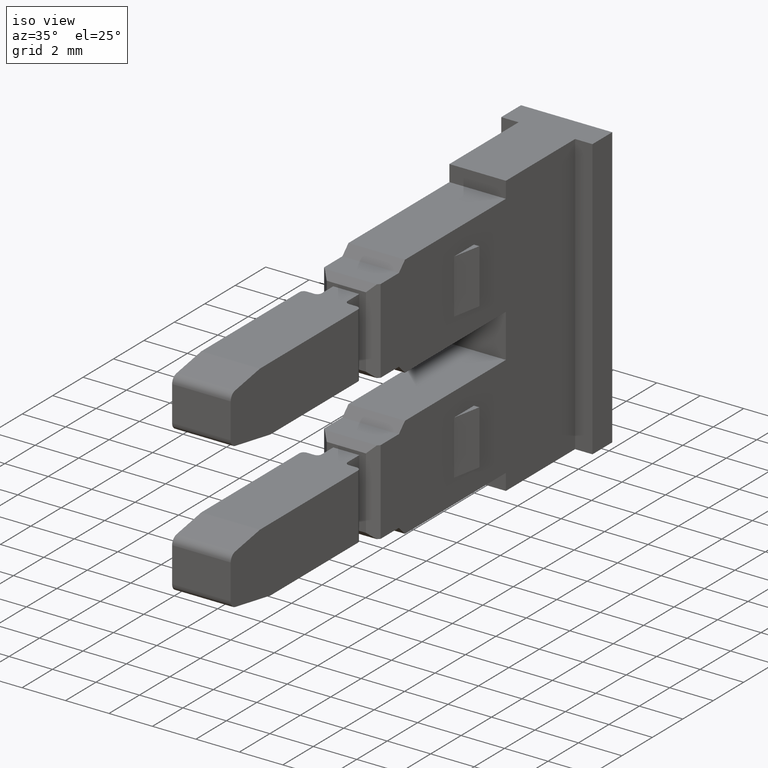
[diagram: clean part render]
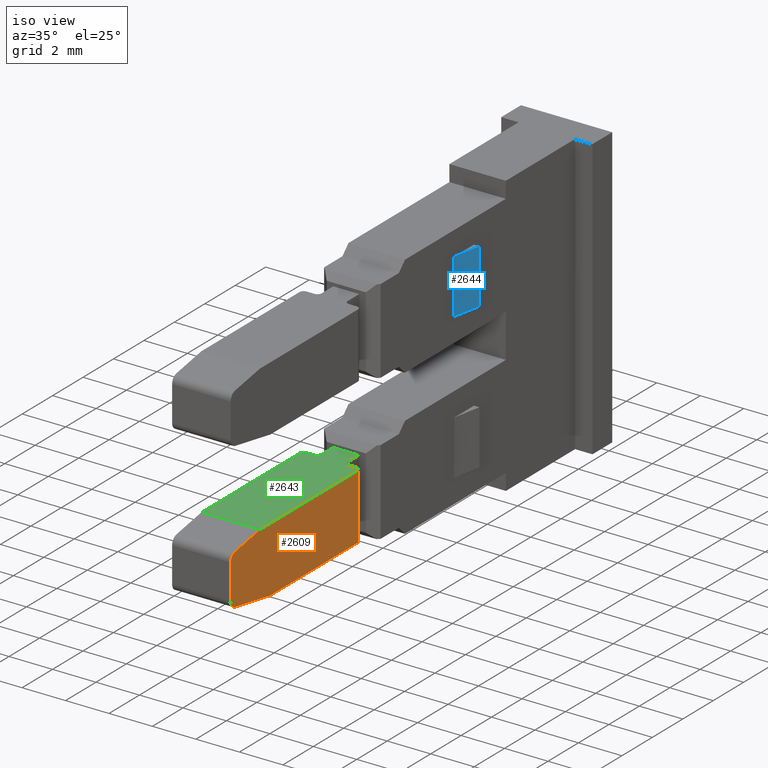
[diagram: same view with three faces highlighted in distinct colors, each labeled with its STEP entity id]
A machine part, iso view with three faces highlighted in distinct colors.
Their STEP definitions:

[orange] entity #2609 — the highlighted planar face has unit normal (1, -0, 0).
#131 = EDGE_LOOP ( 'NONE', ( #866, #878, #843, #883, #888, #847, #882, #853 ) ) ;
#141 = CARTESIAN_POINT ( 'NONE',  ( 1393.430047710925700, 1053.955040641086000, -0.7471850652951396200 ) ) ;
#166 = CARTESIAN_POINT ( 'NONE',  ( 1393.430065924738100, 1055.875547311211200, 1.500000000137393900 ) ) ;
#192 = CARTESIAN_POINT ( 'NONE',  ( 1393.430127046554400, 1062.320373618778600, -1.499999999848094800 ) ) ;
#193 = CARTESIAN_POINT ( 'NONE',  ( 1393.430047710925200, 1053.955040641085800, 0.8676779866391469700 ) ) ;
#199 = CARTESIAN_POINT ( 'NONE',  ( 1393.430050453876400, 1054.244263778889500, -1.091867778849486800 ) ) ;
#207 = CARTESIAN_POINT ( 'NONE',  ( 1393.430050453876000, 1054.244263778889300, 1.212360700193435800 ) ) ;
#222 = CARTESIAN_POINT ( 'NONE',  ( 1393.430127046554400, 1062.320373618778600, 1.500000000140230700 ) ) ;
#239 = CARTESIAN_POINT ( 'NONE',  ( 1393.430072405503600, 1056.558894252765200, -1.499999999846775500 ) ) ;
#313 = LINE ( 'NONE', #314, #2366 ) ;
#314 = CARTESIAN_POINT ( 'NONE',  ( 1393.429974878271900, 1046.275396763449900, -1.499999999849504400 ) ) ;
#316 = DIRECTION ( 'NONE',  ( 9.483858160132053900E-006, 0.9999999999550282000, 0.0000000000000000000 ) ) ;
#420 = VERTEX_POINT ( 'NONE', #166 ) ;
#425 = VERTEX_POINT ( 'NONE', #141 ) ;
#443 = VERTEX_POINT ( 'NONE', #192 ) ;
#444 = VERTEX_POINT ( 'NONE', #193 ) ;
#447 = VERTEX_POINT ( 'NONE', #199 ) ;
#461 = VERTEX_POINT ( 'NONE', #222 ) ;
#463 = VERTEX_POINT ( 'NONE', #239 ) ;
#471 = VERTEX_POINT ( 'NONE', #207 ) ;
#843 = ORIENTED_EDGE ( 'NONE', *, *, #2679, .F. ) ;
#847 = ORIENTED_EDGE ( 'NONE', *, *, #2425, .T. ) ;
#853 = ORIENTED_EDGE ( 'NONE', *, *, #2711, .F. ) ;
#866 = ORIENTED_EDGE ( 'NONE', *, *, #2707, .T. ) ;
#878 = ORIENTED_EDGE ( 'NONE', *, *, #2664, .T. ) ;
#882 = ORIENTED_EDGE ( 'NONE', *, *, #2407, .T. ) ;
#883 = ORIENTED_EDGE ( 'NONE', *, *, #2709, .T. ) ;
#888 = ORIENTED_EDGE ( 'NONE', *, *, #2691, .F. ) ;
#970 = DIRECTION ( 'NONE',  ( -0.9999999999550283100, 9.483855583750710300E-006, -1.714874837315605300E-015 ) ) ;
#1001 = CARTESIAN_POINT ( 'NONE',  ( 1393.430051030274600, 1054.305040641070700, 0.8676779866391483000 ) ) ;
#1002 = DIRECTION ( 'NONE',  ( 9.483855605601561700E-006, 0.9999999999550282000, 1.065615849528465700E-013 ) ) ;
#1018 = DIRECTION ( 'NONE',  ( 9.483855605601561700E-006, 0.9999999999550282000, 1.288651725011167800E-013 ) ) ;
#1035 = CARTESIAN_POINT ( 'NONE',  ( 1393.430051030275300, 1054.305040641070700, -0.7471850652951399500 ) ) ;
#1049 = DIRECTION ( 'NONE',  ( -0.9999999999550283100, 9.483855583750710300E-006, -1.714874837315605300E-015 ) ) ;
#1054 = LINE ( 'NONE', #1085, #2279 ) ;
#1056 = DIRECTION ( 'NONE',  ( -9.483858160132053900E-006, -0.9999999999550282000, -0.0000000000000000000 ) ) ;
#1059 = CARTESIAN_POINT ( 'NONE',  ( 1393.430127046556700, 1062.320374567164400, -1.499999999846702600 ) ) ;
#1066 = CARTESIAN_POINT ( 'NONE',  ( 1393.430047710925200, 1053.955040641085800, -0.7471850652951577100 ) ) ;
#1074 = LINE ( 'NONE', #1059, #2281 ) ;
#1078 = LINE ( 'NONE', #1066, #2280 ) ;
#1079 = DIRECTION ( 'NONE',  ( -0.0000000000000000000, -0.0000000000000000000, -1.000000000000000000 ) ) ;
#1085 = CARTESIAN_POINT ( 'NONE',  ( 1393.429974878271900, 1046.275396763449900, 1.500000000140230700 ) ) ;
#1090 = DIRECTION ( 'NONE',  ( -0.0000000000000000000, -0.0000000000000000000, -1.000000000000000000 ) ) ;
#1162 = LINE ( 'NONE', #1179, #2384 ) ;
#1176 = DIRECTION ( 'NONE',  ( 9.339777050920863200E-006, 0.9848077529677348200, -0.1736481776679778000 ) ) ;
#1179 = CARTESIAN_POINT ( 'NONE',  ( 1393.430050453876400, 1054.244263778889500, -1.091867778849483500 ) ) ;
#1762 = FACE_OUTER_BOUND ( 'NONE', #131, .T. ) ;
#1773 = CARTESIAN_POINT ( 'NONE',  ( 1393.429974878271900, 1046.275396763449900, -3.306031936412574500 ) ) ;
#1782 = DIRECTION ( 'NONE',  ( 9.483858160132053900E-006, 0.9999999999550282000, 0.0000000000000000000 ) ) ;
#1792 = DIRECTION ( 'NONE',  ( 0.9999999999550282000, -9.483858160132053900E-006, 0.0000000000000000000 ) ) ;
#1802 = PLANE ( 'NONE',  #2237 ) ;
#1973 = DIRECTION ( 'NONE',  ( -9.339777484562960100E-006, -0.9848077529676954000, -0.1736481776682013400 ) ) ;
#1998 = LINE ( 'NONE', #2017, #2183 ) ;
#2017 = CARTESIAN_POINT ( 'NONE',  ( 1393.430065924738300, 1055.875547311204600, 1.500000000141142900 ) ) ;
#2183 = VECTOR ( 'NONE', #1973, 1000.000000000000100 ) ;
#2237 = AXIS2_PLACEMENT_3D ( 'NONE', #1773, #1792, #1782 ) ;
#2279 = VECTOR ( 'NONE', #1056, 1000.000000000000000 ) ;
#2280 = VECTOR ( 'NONE', #1090, 1000.000000000000000 ) ;
#2281 = VECTOR ( 'NONE', #1079, 1000.000000000000000 ) ;
#2289 = CIRCLE ( 'NONE', #2319, 0.3500000000000474400 ) ;
#2295 = AXIS2_PLACEMENT_3D ( 'NONE', #1035, #1049, #1018 ) ;
#2309 = CIRCLE ( 'NONE', #2295, 0.3500000000000474400 ) ;
#2319 = AXIS2_PLACEMENT_3D ( 'NONE', #1001, #970, #1002 ) ;
#2366 = VECTOR ( 'NONE', #316, 1000.000000000000000 ) ;
#2384 = VECTOR ( 'NONE', #1176, 1000.000000000000100 ) ;
#2407 = EDGE_CURVE ( 'NONE', #463, #443, #313, .T. ) ;
#2425 = EDGE_CURVE ( 'NONE', #447, #463, #1162, .T. ) ;
#2609 = ADVANCED_FACE ( 'NONE', ( #1762 ), #1802, .T. ) ;
#2664 = EDGE_CURVE ( 'NONE', #420, #471, #1998, .T. ) ;
#2679 = EDGE_CURVE ( 'NONE', #444, #471, #2289, .T. ) ;
#2691 = EDGE_CURVE ( 'NONE', #447, #425, #2309, .T. ) ;
#2707 = EDGE_CURVE ( 'NONE', #461, #420, #1054, .T. ) ;
#2709 = EDGE_CURVE ( 'NONE', #444, #425, #1078, .T. ) ;
#2711 = EDGE_CURVE ( 'NONE', #461, #443, #1074, .T. ) ;

[blue] entity #2644 — the highlighted planar face has unit normal (0.982, -0.1889, 0).
#10 = ORIENTED_EDGE ( 'NONE', *, *, #2468, .F. ) ;
#23 = ORIENTED_EDGE ( 'NONE', *, *, #2469, .F. ) ;
#24 = ORIENTED_EDGE ( 'NONE', *, *, #2513, .T. ) ;
#132 = EDGE_LOOP ( 'NONE', ( #10, #23, #24, #611 ) ) ;
#227 = CARTESIAN_POINT ( 'NONE',  ( 1393.382352594128200, 1068.707091196434000, 7.949999999999763000 ) ) ;
#281 = CARTESIAN_POINT ( 'NONE',  ( 1393.632440320039700, 1070.007091196375300, 5.449999999999762100 ) ) ;
#293 = CARTESIAN_POINT ( 'NONE',  ( 1393.382352594128200, 1068.707091196434000, 5.449999999999762100 ) ) ;
#304 = CARTESIAN_POINT ( 'NONE',  ( 1393.632440320039700, 1070.007091196375300, 7.949999999999763000 ) ) ;
#494 = VERTEX_POINT ( 'NONE', #227 ) ;
#515 = VERTEX_POINT ( 'NONE', #281 ) ;
#516 = VERTEX_POINT ( 'NONE', #304 ) ;
#546 = VERTEX_POINT ( 'NONE', #293 ) ;
#611 = ORIENTED_EDGE ( 'NONE', *, *, #2490, .T. ) ;
#1236 = LINE ( 'NONE', #1269, #2078 ) ;
#1238 = CARTESIAN_POINT ( 'NONE',  ( 1393.382352594128200, 1068.707091196434000, 5.449999999999762100 ) ) ;
#1256 = LINE ( 'NONE', #1238, #2068 ) ;
#1269 = CARTESIAN_POINT ( 'NONE',  ( 1393.632440320039700, 1070.007091196375300, 7.949999999999763000 ) ) ;
#1280 = DIRECTION ( 'NONE',  ( 0.1889112963866924900, 0.9819941558367336600, -0.0000000000000000000 ) ) ;
#1284 = DIRECTION ( 'NONE',  ( 0.0000000000000000000, 0.0000000000000000000, 1.000000000000000000 ) ) ;
#1343 = DIRECTION ( 'NONE',  ( 0.0000000000000000000, 0.0000000000000000000, 1.000000000000000000 ) ) ;
#1351 = LINE ( 'NONE', #1352, #2103 ) ;
#1352 = CARTESIAN_POINT ( 'NONE',  ( 1393.632440320039700, 1070.007091196375300, 5.449999999999762100 ) ) ;
#1405 = LINE ( 'NONE', #1406, #2180 ) ;
#1406 = CARTESIAN_POINT ( 'NONE',  ( 1393.632440320039700, 1070.007091196375300, 5.449999999999762100 ) ) ;
#1408 = DIRECTION ( 'NONE',  ( 0.1889112963866924900, 0.9819941558367336600, -0.0000000000000000000 ) ) ;
#1927 = CARTESIAN_POINT ( 'NONE',  ( 1393.632440320039700, 1070.007091196375300, 5.449999999999762100 ) ) ;
#1929 = PLANE ( 'NONE',  #2262 ) ;
#1930 = FACE_OUTER_BOUND ( 'NONE', #132, .T. ) ;
#1996 = DIRECTION ( 'NONE',  ( 0.1889112963866924900, 0.9819941558367336600, 0.0000000000000000000 ) ) ;
#2011 = DIRECTION ( 'NONE',  ( 0.9819941558367336600, -0.1889112963866924900, 0.0000000000000000000 ) ) ;
#2068 = VECTOR ( 'NONE', #1284, 1000.000000000000000 ) ;
#2078 = VECTOR ( 'NONE', #1280, 1000.000000000000100 ) ;
#2103 = VECTOR ( 'NONE', #1343, 1000.000000000000000 ) ;
#2180 = VECTOR ( 'NONE', #1408, 1000.000000000000100 ) ;
#2262 = AXIS2_PLACEMENT_3D ( 'NONE', #1927, #2011, #1996 ) ;
#2468 = EDGE_CURVE ( 'NONE', #494, #516, #1236, .T. ) ;
#2469 = EDGE_CURVE ( 'NONE', #546, #494, #1256, .T. ) ;
#2490 = EDGE_CURVE ( 'NONE', #515, #516, #1351, .T. ) ;
#2513 = EDGE_CURVE ( 'NONE', #546, #515, #1405, .T. ) ;
#2644 = ADVANCED_FACE ( 'NONE', ( #1930 ), #1929, .T. ) ;

[green] entity #2643 — the highlighted planar face has unit normal (-0, -0, 1).
#77 = EDGE_LOOP ( 'NONE', ( #826, #812, #764, #803, #817, #811, #836, #757, #765, #766, #822, #838 ) ) ;
#165 = CARTESIAN_POINT ( 'NONE',  ( 1392.882296812762400, 1062.520375031073900, 1.500000000140229800 ) ) ;
#166 = CARTESIAN_POINT ( 'NONE',  ( 1393.430065924738100, 1055.875547311211200, 1.500000000137393900 ) ) ;
#171 = CARTESIAN_POINT ( 'NONE',  ( 1393.230127046556600, 1062.520374567159700, 1.500000000140230900 ) ) ;
#185 = CARTESIAN_POINT ( 'NONE',  ( 1392.682297049863100, 1062.720376917582800, 1.500000000140368800 ) ) ;
#191 = CARTESIAN_POINT ( 'NONE',  ( 1390.734398344382700, 1055.875568134593800, 1.500000000135636600 ) ) ;
#200 = CARTESIAN_POINT ( 'NONE',  ( 1391.282296812836200, 1062.520390669159500, 1.500000000140784100 ) ) ;
#202 = CARTESIAN_POINT ( 'NONE',  ( 1390.734459466159300, 1062.320393493786700, 1.500000000137330800 ) ) ;
#216 = CARTESIAN_POINT ( 'NONE',  ( 1391.482300638278000, 1062.720390194980800, 1.500000000140784300 ) ) ;
#222 = CARTESIAN_POINT ( 'NONE',  ( 1393.430127046554400, 1062.320373618778600, 1.500000000140230700 ) ) ;
#232 = CARTESIAN_POINT ( 'NONE',  ( 1392.682304226567800, 1063.477105422838600, 1.500000000141587200 ) ) ;
#253 = CARTESIAN_POINT ( 'NONE',  ( 1390.934459703250000, 1062.520391133091400, 1.500000000138654400 ) ) ;
#254 = CARTESIAN_POINT ( 'NONE',  ( 1391.482304226623000, 1063.477116803461300, 1.500000000141583900 ) ) ;
#408 = VERTEX_POINT ( 'NONE', #165 ) ;
#411 = VERTEX_POINT ( 'NONE', #171 ) ;
#420 = VERTEX_POINT ( 'NONE', #166 ) ;
#423 = VERTEX_POINT ( 'NONE', #185 ) ;
#442 = VERTEX_POINT ( 'NONE', #191 ) ;
#450 = VERTEX_POINT ( 'NONE', #200 ) ;
#452 = VERTEX_POINT ( 'NONE', #202 ) ;
#461 = VERTEX_POINT ( 'NONE', #222 ) ;
#466 = VERTEX_POINT ( 'NONE', #254 ) ;
#473 = VERTEX_POINT ( 'NONE', #232 ) ;
#481 = VERTEX_POINT ( 'NONE', #253 ) ;
#487 = VERTEX_POINT ( 'NONE', #216 ) ;
#757 = ORIENTED_EDGE ( 'NONE', *, *, #2706, .T. ) ;
#764 = ORIENTED_EDGE ( 'NONE', *, *, #2672, .T. ) ;
#765 = ORIENTED_EDGE ( 'NONE', *, *, #2680, .F. ) ;
#766 = ORIENTED_EDGE ( 'NONE', *, *, #2685, .T. ) ;
#803 = ORIENTED_EDGE ( 'NONE', *, *, #2701, .T. ) ;
#811 = ORIENTED_EDGE ( 'NONE', *, *, #2702, .T. ) ;
#812 = ORIENTED_EDGE ( 'NONE', *, *, #2705, .T. ) ;
#817 = ORIENTED_EDGE ( 'NONE', *, *, #2677, .T. ) ;
#822 = ORIENTED_EDGE ( 'NONE', *, *, #2707, .F. ) ;
#826 = ORIENTED_EDGE ( 'NONE', *, *, #2675, .T. ) ;
#836 = ORIENTED_EDGE ( 'NONE', *, *, #2708, .T. ) ;
#838 = ORIENTED_EDGE ( 'NONE', *, *, #2684, .T. ) ;
#963 = CARTESIAN_POINT ( 'NONE',  ( 1392.082388177684200, 1062.520374567159700, 1.500000000140228900 ) ) ;
#964 = LINE ( 'NONE', #963, #2318 ) ;
#965 = LINE ( 'NONE', #975, #2324 ) ;
#972 = LINE ( 'NONE', #999, #2325 ) ;
#974 = DIRECTION ( 'NONE',  ( 0.0000000000000000000, -1.000000000000000000, -1.418215371961189400E-012 ) ) ;
#975 = CARTESIAN_POINT ( 'NONE',  ( 1390.734307297966100, 1046.275417586839900, 1.500000000136007200 ) ) ;
#977 = DIRECTION ( 'NONE',  ( 9.483855583750710300E-006, 0.9999999999550282000, 1.418215388288594500E-012 ) ) ;
#982 = DIRECTION ( 'NONE',  ( -1.000000000000000000, 2.451137064545806300E-027, -1.728324987167663900E-015 ) ) ;
#989 = LINE ( 'NONE', #1005, #2291 ) ;
#996 = DIRECTION ( 'NONE',  ( 9.483853007369366800E-006, 0.9999999999550282000, -0.0000000000000000000 ) ) ;
#997 = LINE ( 'NONE', #1007, #2308 ) ;
#999 = CARTESIAN_POINT ( 'NONE',  ( 1392.682646574239900, 1099.575047856852300, 1.500000000192784700 ) ) ;
#1005 = CARTESIAN_POINT ( 'NONE',  ( 1391.482304226623000, 1072.329111112720100, 1.500000000154138900 ) ) ;
#1007 = CARTESIAN_POINT ( 'NONE',  ( 1390.984398344382700, 1055.875568134593800, 1.500000000130803400 ) ) ;
#1012 = DIRECTION ( 'NONE',  ( 0.9999999999550282000, -9.483852898471060400E-006, 1.777649702392805700E-015 ) ) ;
#1015 = DIRECTION ( 'NONE',  ( 0.0000000000000000000, 0.0000000000000000000, 1.000000000000000000 ) ) ;
#1034 = DIRECTION ( 'NONE',  ( 1.000000000000000000, 0.0000000000000000000, 0.0000000000000000000 ) ) ;
#1041 = CARTESIAN_POINT ( 'NONE',  ( 1393.230127046556600, 1062.320374567164400, 1.500000000140230500 ) ) ;
#1054 = LINE ( 'NONE', #1085, #2279 ) ;
#1056 = DIRECTION ( 'NONE',  ( -9.483858160132053900E-006, -0.9999999999550282000, -0.0000000000000000000 ) ) ;
#1058 = DIRECTION ( 'NONE',  ( -1.000000000000000000, 2.451137064545806300E-027, -1.728324987167663900E-015 ) ) ;
#1060 = CARTESIAN_POINT ( 'NONE',  ( 1391.282297049932600, 1062.720390669156400, 1.500000000140784100 ) ) ;
#1065 = DIRECTION ( 'NONE',  ( 1.714874837238479500E-015, -1.626362530130914600E-020, -1.000000000000000000 ) ) ;
#1068 = LINE ( 'NONE', #1076, #2302 ) ;
#1070 = DIRECTION ( 'NONE',  ( 1.714874837238484400E-015, -1.626362530130919100E-020, -1.000000000000000000 ) ) ;
#1072 = CARTESIAN_POINT ( 'NONE',  ( 1390.934459466150200, 1062.320391597015900, 1.500000000138654400 ) ) ;
#1075 = DIRECTION ( 'NONE',  ( 1.000000000000000000, 0.0000000000000000000, 2.168404344971247500E-015 ) ) ;
#1076 = CARTESIAN_POINT ( 'NONE',  ( 1392.682297049867900, 1063.477105422906800, 1.500000000141587200 ) ) ;
#1081 = DIRECTION ( 'NONE',  ( -0.9999999999550282000, 9.483848618906044600E-006, -1.807014427811587200E-015 ) ) ;
#1082 = DIRECTION ( 'NONE',  ( -3.653909838371683000E-024, 3.465315322472135600E-029, 1.000000000000000000 ) ) ;
#1083 = DIRECTION ( 'NONE',  ( 1.000000000000000000, 0.0000000000000000000, 0.0000000000000000000 ) ) ;
#1085 = CARTESIAN_POINT ( 'NONE',  ( 1393.429974878271900, 1046.275396763449900, 1.500000000140230700 ) ) ;
#1088 = CARTESIAN_POINT ( 'NONE',  ( 1392.882297049858800, 1062.720375494987400, 1.500000000140229800 ) ) ;
#1092 = CARTESIAN_POINT ( 'NONE',  ( 1392.082388177684200, 1062.520390669162000, 1.500000000140228900 ) ) ;
#1094 = DIRECTION ( 'NONE',  ( -1.000000000000000000, 0.0000000000000000000, -2.168404344971247500E-015 ) ) ;
#1096 = LINE ( 'NONE', #1092, #2277 ) ;
#1924 = DIRECTION ( 'NONE',  ( -1.728324987167663900E-015, -1.418215371961189400E-012, 1.000000000000000000 ) ) ;
#1960 = PLANE ( 'NONE',  #2260 ) ;
#1961 = CARTESIAN_POINT ( 'NONE',  ( 1392.082388177684200, 1072.329111112720100, 1.500000000154140000 ) ) ;
#1963 = DIRECTION ( 'NONE',  ( 0.0000000000000000000, -1.000000000000000000, -1.418215371961189400E-012 ) ) ;
#1967 = FACE_OUTER_BOUND ( 'NONE', #77, .T. ) ;
#2260 = AXIS2_PLACEMENT_3D ( 'NONE', #1961, #1924, #1963 ) ;
#2274 = AXIS2_PLACEMENT_3D ( 'NONE', #1088, #1065, #1094 ) ;
#2276 = AXIS2_PLACEMENT_3D ( 'NONE', #1060, #1070, #1075 ) ;
#2277 = VECTOR ( 'NONE', #1058, 1000.000000000000000 ) ;
#2278 = AXIS2_PLACEMENT_3D ( 'NONE', #1072, #1082, #1083 ) ;
#2279 = VECTOR ( 'NONE', #1056, 1000.000000000000000 ) ;
#2282 = CIRCLE ( 'NONE', #2274, 0.1999999999999779700 ) ;
#2291 = VECTOR ( 'NONE', #974, 1000.000000000000000 ) ;
#2296 = AXIS2_PLACEMENT_3D ( 'NONE', #1041, #1015, #1034 ) ;
#2302 = VECTOR ( 'NONE', #1081, 1000.000000000000100 ) ;
#2308 = VECTOR ( 'NONE', #1012, 1000.000000000000100 ) ;
#2312 = CIRCLE ( 'NONE', #2278, 0.1999999999999779700 ) ;
#2314 = CIRCLE ( 'NONE', #2276, 0.1999999999999779700 ) ;
#2318 = VECTOR ( 'NONE', #982, 1000.000000000000000 ) ;
#2321 = CIRCLE ( 'NONE', #2296, 0.1999999999999779700 ) ;
#2324 = VECTOR ( 'NONE', #996, 1000.000000000000200 ) ;
#2325 = VECTOR ( 'NONE', #977, 1000.000000000000200 ) ;
#2643 = ADVANCED_FACE ( 'NONE', ( #1967 ), #1960, .T. ) ;
#2672 = EDGE_CURVE ( 'NONE', #423, #473, #972, .T. ) ;
#2675 = EDGE_CURVE ( 'NONE', #411, #408, #964, .T. ) ;
#2677 = EDGE_CURVE ( 'NONE', #466, #487, #989, .T. ) ;
#2680 = EDGE_CURVE ( 'NONE', #442, #452, #965, .T. ) ;
#2684 = EDGE_CURVE ( 'NONE', #461, #411, #2321, .T. ) ;
#2685 = EDGE_CURVE ( 'NONE', #442, #420, #997, .T. ) ;
#2701 = EDGE_CURVE ( 'NONE', #473, #466, #1068, .T. ) ;
#2702 = EDGE_CURVE ( 'NONE', #487, #450, #2314, .T. ) ;
#2705 = EDGE_CURVE ( 'NONE', #408, #423, #2282, .T. ) ;
#2706 = EDGE_CURVE ( 'NONE', #481, #452, #2312, .T. ) ;
#2707 = EDGE_CURVE ( 'NONE', #461, #420, #1054, .T. ) ;
#2708 = EDGE_CURVE ( 'NONE', #450, #481, #1096, .T. ) ;